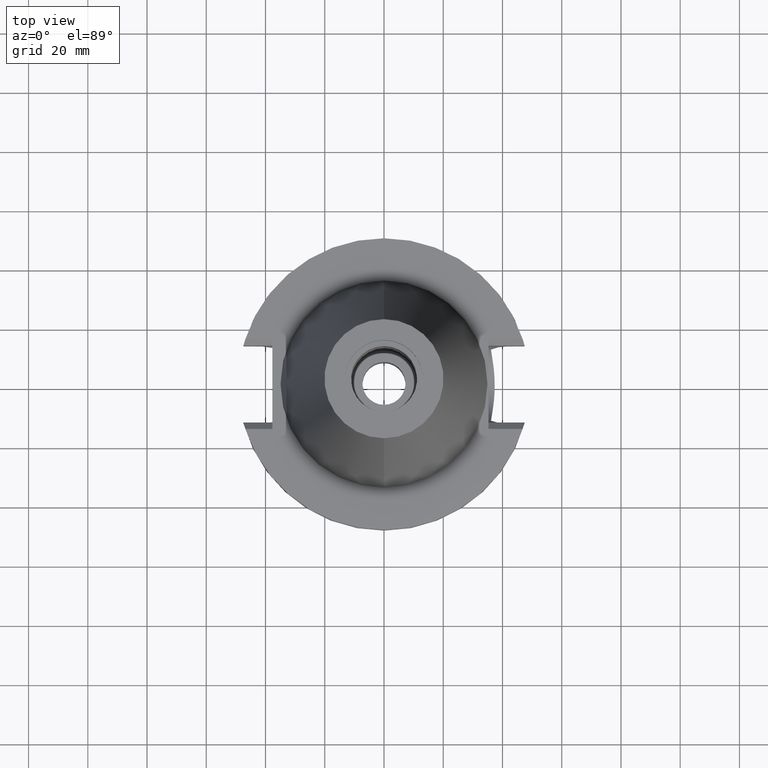
[diagram: clean part render]
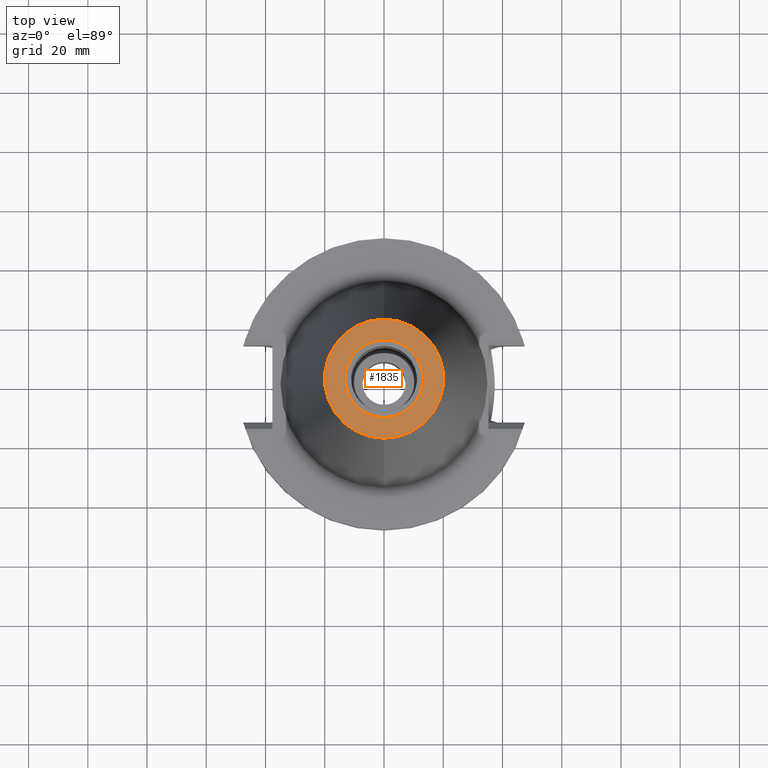
[diagram: same view with one face highlighted and labeled with its STEP entity id]
A machine part, top view. The second image highlights one B-rep face of the part: STEP entity #1835.
In plain terms, the highlighted planar face has unit normal (0, 0, -1).
Its self-contained STEP definition (entity closure, byte-faithful):
#17=CARTESIAN_POINT('',(0.E0,0.E0,1.016E2));
#18=DIRECTION('',(0.E0,0.E0,-1.E0));
#19=DIRECTION('',(0.E0,-1.E0,0.E0));
#20=AXIS2_PLACEMENT_3D('',#17,#18,#19);
#26=CARTESIAN_POINT('',(0.E0,0.E0,1.016E2));
#27=DIRECTION('',(0.E0,0.E0,-1.E0));
#28=DIRECTION('',(0.E0,1.E0,0.E0));
#29=AXIS2_PLACEMENT_3D('',#26,#27,#28);
#34=CARTESIAN_POINT('',(0.E0,1.370134838886E-14,1.016E2));
#35=DIRECTION('',(0.E0,0.E0,1.E0));
#36=DIRECTION('',(0.E0,-1.E0,0.E0));
#37=AXIS2_PLACEMENT_3D('',#34,#35,#36);
#42=CARTESIAN_POINT('',(0.E0,1.370134838886E-14,1.016E2));
#43=DIRECTION('',(0.E0,0.E0,1.E0));
#44=DIRECTION('',(0.E0,1.E0,0.E0));
#45=AXIS2_PLACEMENT_3D('',#42,#43,#44);
#1571=CARTESIAN_POINT('',(0.E0,-2.010832422388E1,1.016E2));
#1572=CARTESIAN_POINT('',(0.E0,2.010832422388E1,1.016E2));
#1573=VERTEX_POINT('',#1571);
#1574=VERTEX_POINT('',#1572);
#1575=CARTESIAN_POINT('',(0.E0,-1.3115E1,1.016E2));
#1576=CARTESIAN_POINT('',(0.E0,1.3115E1,1.016E2));
#1577=VERTEX_POINT('',#1575);
#1578=VERTEX_POINT('',#1576);
#1818=CARTESIAN_POINT('',(0.E0,1.244241147934E-14,1.016E2));
#1819=DIRECTION('',(0.E0,0.E0,-1.E0));
#1820=DIRECTION('',(0.E0,-1.E0,0.E0));
#1821=AXIS2_PLACEMENT_3D('',#1818,#1819,#1820);
#1822=PLANE('',#1821);
#1824=ORIENTED_EDGE('',*,*,#1823,.T.);
#1826=ORIENTED_EDGE('',*,*,#1825,.T.);
#1827=EDGE_LOOP('',(#1824,#1826));
#1828=FACE_OUTER_BOUND('',#1827,.F.);
#1830=ORIENTED_EDGE('',*,*,#1829,.T.);
#1832=ORIENTED_EDGE('',*,*,#1831,.T.);
#1833=EDGE_LOOP('',(#1830,#1832));
#1834=FACE_BOUND('',#1833,.F.);
#21=CIRCLE('',#20,2.010832422388E1);
#30=CIRCLE('',#29,2.010832422388E1);
#38=CIRCLE('',#37,1.3115E1);
#46=CIRCLE('',#45,1.3115E1);
#1823=EDGE_CURVE('',#1573,#1574,#21,.T.);
#1825=EDGE_CURVE('',#1574,#1573,#30,.T.);
#1829=EDGE_CURVE('',#1577,#1578,#38,.T.);
#1831=EDGE_CURVE('',#1578,#1577,#46,.T.);
#1835=ADVANCED_FACE('',(#1828,#1834),#1822,.F.);